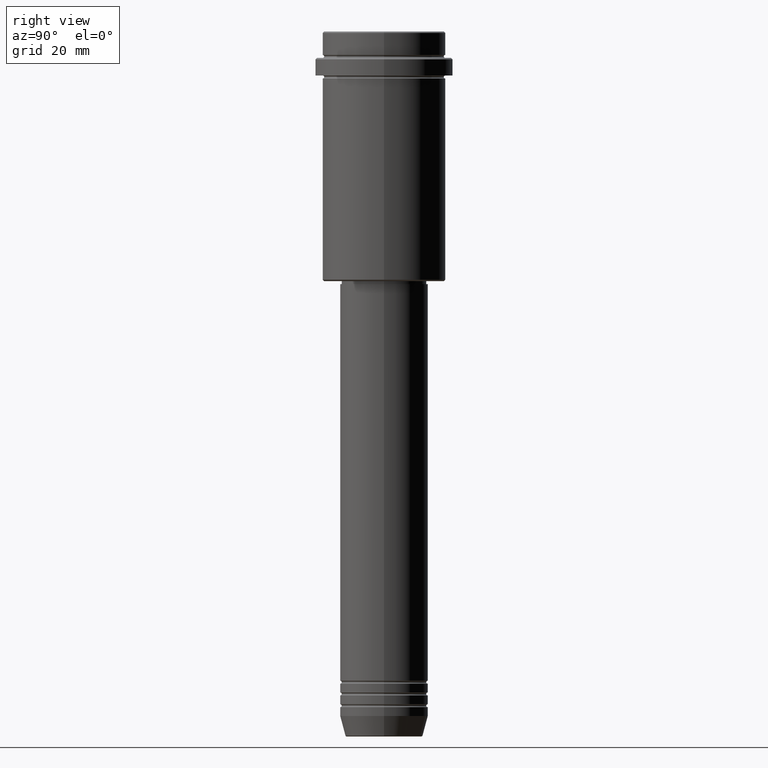
[diagram: clean part render]
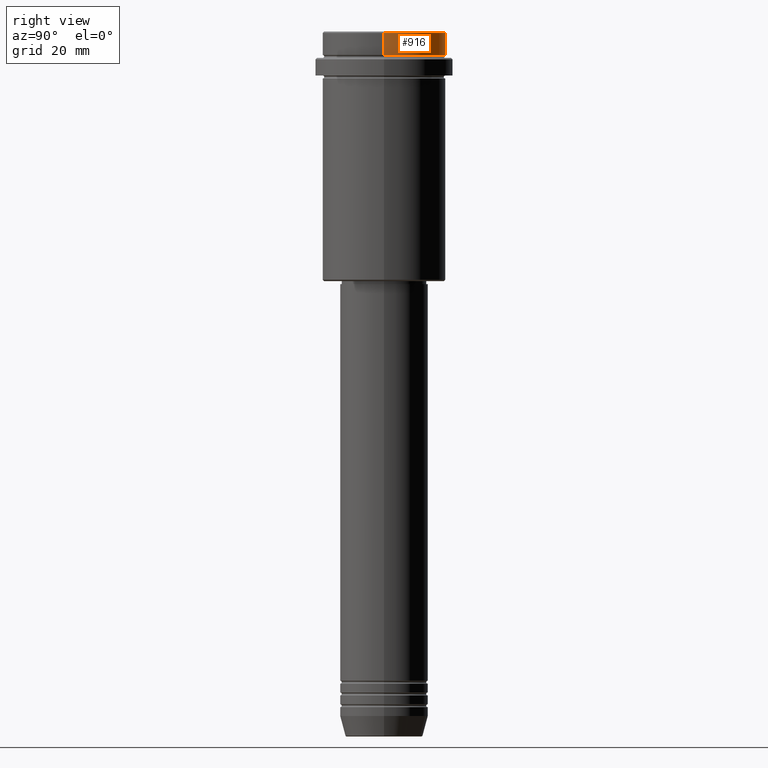
[diagram: same view with one face highlighted and labeled with its STEP entity id]
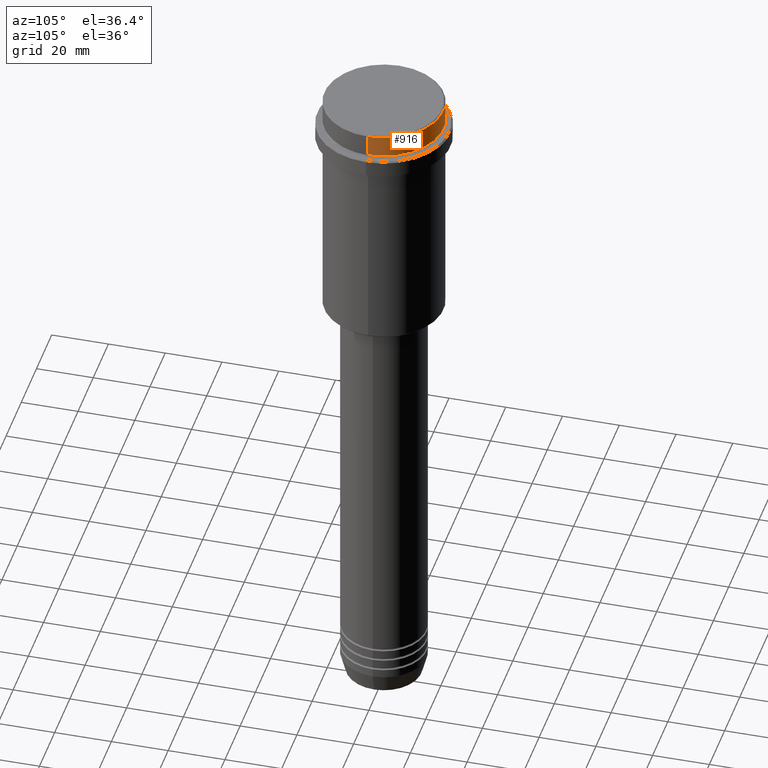
[diagram: same view with one face highlighted and labeled with its STEP entity id]
A machine part, right view. The second image highlights one B-rep face of the part: STEP entity #916.
A second angle (auxiliary view) of the same face is appended — the face is thin or edge-on in the first view.
In plain terms, the highlighted cylindrical surface (partial cylindrical patch) has radius 21 mm, axis along (-0, -0, 1).
Its self-contained STEP definition (entity closure, byte-faithful):
#7 = CARTESIAN_POINT ( 'NONE',  ( -21.00000000000000000, 2.571758278209441661E-15, 0.000000000000000000 ) ) ;
#98 = EDGE_CURVE ( 'NONE', #1143, #431, #861, .T. ) ;
#100 = DIRECTION ( 'NONE',  ( -0.000000000000000000, -0.000000000000000000, 1.000000000000000000 ) ) ;
#134 = CIRCLE ( 'NONE', #314, 21.00000000000000000 ) ;
#164 = DIRECTION ( 'NONE',  ( 0.000000000000000000, 0.000000000000000000, -1.000000000000000000 ) ) ;
#183 = CARTESIAN_POINT ( 'NONE',  ( -21.00000000000000000, 2.571758278209441661E-15, -0.5000000000000663913 ) ) ;
#194 = DIRECTION ( 'NONE',  ( -0.000000000000000000, -0.000000000000000000, 1.000000000000000000 ) ) ;
#231 = VECTOR ( 'NONE', #100, 1000.000000000000000 ) ;
#286 = CARTESIAN_POINT ( 'NONE',  ( 21.00000000000000000, 0.000000000000000000, -0.5000000000000663913 ) ) ;
#292 = VERTEX_POINT ( 'NONE', #1291 ) ;
#298 = DIRECTION ( 'NONE',  ( -0.000000000000000000, -0.000000000000000000, 1.000000000000000000 ) ) ;
#314 = AXIS2_PLACEMENT_3D ( 'NONE', #937, #194, #943 ) ;
#373 = ORIENTED_EDGE ( 'NONE', *, *, #382, .F. ) ;
#382 = EDGE_CURVE ( 'NONE', #292, #431, #387, .T. ) ;
#387 = LINE ( 'NONE', #1147, #728 ) ;
#431 = VERTEX_POINT ( 'NONE', #286 ) ;
#525 = DIRECTION ( 'NONE',  ( 1.000000000000000000, 0.000000000000000000, 0.000000000000000000 ) ) ;
#537 = EDGE_LOOP ( 'NONE', ( #1212, #543, #794, #373 ) ) ;
#543 = ORIENTED_EDGE ( 'NONE', *, *, #972, .T. ) ;
#719 = CARTESIAN_POINT ( 'NONE',  ( 0.000000000000000000, 0.000000000000000000, -0.5000000000000663913 ) ) ;
#728 = VECTOR ( 'NONE', #298, 1000.000000000000000 ) ;
#740 = CYLINDRICAL_SURFACE ( 'NONE', #1092, 21.00000000000000000 ) ;
#744 = CARTESIAN_POINT ( 'NONE',  ( 0.000000000000000000, 0.000000000000000000, 0.000000000000000000 ) ) ;
#760 = LINE ( 'NONE', #7, #231 ) ;
#794 = ORIENTED_EDGE ( 'NONE', *, *, #98, .T. ) ;
#853 = FACE_OUTER_BOUND ( 'NONE', #537, .T. ) ;
#861 = CIRCLE ( 'NONE', #1045, 21.00000000000000000 ) ;
#916 = ADVANCED_FACE ( 'NONE', ( #853 ), #740, .T. ) ;
#937 = CARTESIAN_POINT ( 'NONE',  ( 0.000000000000000000, 0.000000000000000000, -7.999999999999998224 ) ) ;
#943 = DIRECTION ( 'NONE',  ( 1.000000000000000000, 0.000000000000000000, 0.000000000000000000 ) ) ;
#972 = EDGE_CURVE ( 'NONE', #1263, #1143, #760, .T. ) ;
#1034 = DIRECTION ( 'NONE',  ( 1.000000000000000000, 0.000000000000000000, 0.000000000000000000 ) ) ;
#1045 = AXIS2_PLACEMENT_3D ( 'NONE', #719, #164, #1034 ) ;
#1092 = AXIS2_PLACEMENT_3D ( 'NONE', #744, #1396, #525 ) ;
#1143 = VERTEX_POINT ( 'NONE', #183 ) ;
#1147 = CARTESIAN_POINT ( 'NONE',  ( 21.00000000000000000, 0.000000000000000000, 0.000000000000000000 ) ) ;
#1209 = EDGE_CURVE ( 'NONE', #292, #1263, #134, .T. ) ;
#1212 = ORIENTED_EDGE ( 'NONE', *, *, #1209, .T. ) ;
#1263 = VERTEX_POINT ( 'NONE', #1390 ) ;
#1291 = CARTESIAN_POINT ( 'NONE',  ( 21.00000000000000000, 0.000000000000000000, -7.999999999999998224 ) ) ;
#1390 = CARTESIAN_POINT ( 'NONE',  ( -21.00000000000000000, 2.571758278209441661E-15, -7.999999999999998224 ) ) ;
#1396 = DIRECTION ( 'NONE',  ( -0.000000000000000000, -0.000000000000000000, 1.000000000000000000 ) ) ;